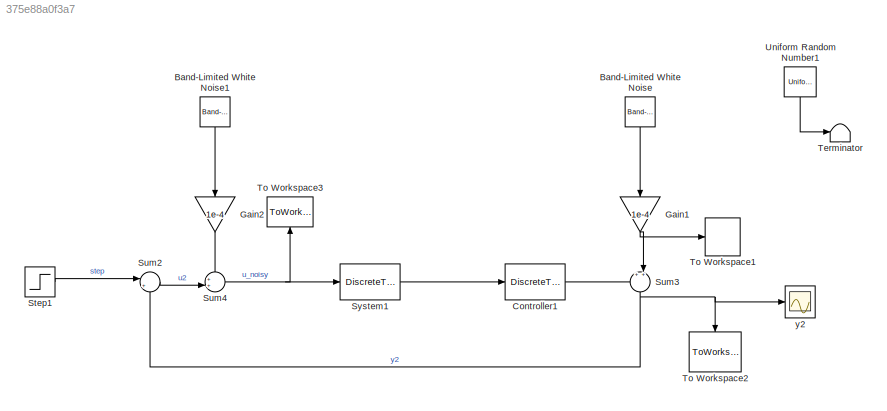
MODEL slx_375e88a0f3a7
KIND model
CONFIG AbsTol = auto
CONFIG EnableMultiTasking = off
CONFIG FixedStep = auto
CONFIG MaxStep = auto
CONFIG MinStep = auto
CONFIG RelTol = 1e-3
CONFIG SampleTimeConstraint = Unconstrained
CONFIG SolverName = VariableStepAuto
CONFIG StartTime = 0.0
CONFIG StopTime = Ts*1e6
BLOCK [Reference] Band-Limited White Noise  REF=simulink/Sources/Band-Limited
White Noise
  NameLocation = left
  Ports = [0, 1]
  SourceBlock = simulink/Sources/Band-Limited\nWhite Noise
  SourceProductBaseCode = SL
  SourceType = Band-Limited White Noise.
BLOCK [Reference] Band-Limited White Noise1  REF=simulink/Sources/Band-Limited
White Noise
  NameLocation = left
  Ports = [0, 1]
  SourceBlock = simulink/Sources/Band-Limited\nWhite Noise
  SourceProductBaseCode = SL
  SourceType = Band-Limited White Noise.
BLOCK [DiscreteTransferFcn] Controller1
  Denominator = C.Denominator{1,1}
  InputPortMap = u0
  Numerator = C.Numerator{1,1}
  Ports = [1, 1]
BLOCK [Gain] Gain1
  Gain = 1e-4
  NameLocation = left
BLOCK [Gain] Gain2
  Gain = 1e-4
  NameLocation = left
BLOCK [Step] Step1
  After = 5
  SampleTime = 0
  Time = 0
BLOCK [Sum] Sum2
  Inputs = |+-
  Ports = [2, 1]
BLOCK [Sum] Sum3
  Inputs = ++|
  NameLocation = left
  Ports = [2, 1]
BLOCK [Sum] Sum4
  Inputs = ++|
  Ports = [2, 1]
BLOCK [DiscreteTransferFcn] System1
  Denominator = sysd.Denominator{1,1}
  InputPortMap = u0
  Numerator = sysd.Numerator{1,1}
  Ports = [1, 1]
BLOCK [Terminator] Terminator
BLOCK [ToWorkspace] To Workspace1
  MaxDataPoints = inf
  Ports = [1]
  SampleTime = -1
  VariableName = e
BLOCK [ToWorkspace] To Workspace2
  MaxDataPoints = inf
  NameLocation = left
  Ports = [1]
  SampleTime = -1
  VariableName = y_noisy
BLOCK [ToWorkspace] To Workspace3
  FixptAsFi = on
  MaxDataPoints = inf
  NameLocation = right
  Ports = [1]
  SampleTime = -1
  VariableName = u_noisy
BLOCK [UniformRandomNumber] Uniform Random Number1
  NameLocation = left
  SampleTime = Ts
BLOCK [Scope] y2
  Floating = off
  NumInputPorts = 1
  Ports = [1]
  ScopeSpecificationString = Simulink.scopes.TimeScopeBlockCfg('CurrentConfiguration', extmgr.ConfigurationSet(extmgr.Configuration('Core','General UI',true),extmgr.Configuration('Core','Source UI',true),extmgr.Configuration('Sources','WiredSimulink',true),extmgr.Configuration('Visuals','Time Domain',true,'SerializedDisplays',{struct('MinYLimReal','-0.02447','MaxYLimReal','0.02553','YLabelReal','','MinYLimMag','0.00000','MaxY...<+1359ch>
LINE Band-Limited White Noise1:1 -> Gain2:1
LINE Band-Limited White Noise:1 -> Gain1:1
LINE Controller1:1 -> Sum3:1
NET Gain1:1 -> Sum3:2, To Workspace1:1
LINE Gain2:1 -> Sum4:1
LINE Step1:1 -> Sum2:1
LINE Sum2:1 -> Sum4:2
NET Sum3:1 -> Sum2:2, To Workspace2:1, y2:1
NET Sum4:1 -> System1:1, To Workspace3:1
LINE System1:1 -> Controller1:1
LINE Uniform Random Number1:1 -> Terminator:1
note: NET lines group one-source signal fan-out (src -> all destinations, sorted); 1:1 wires keep LINE
